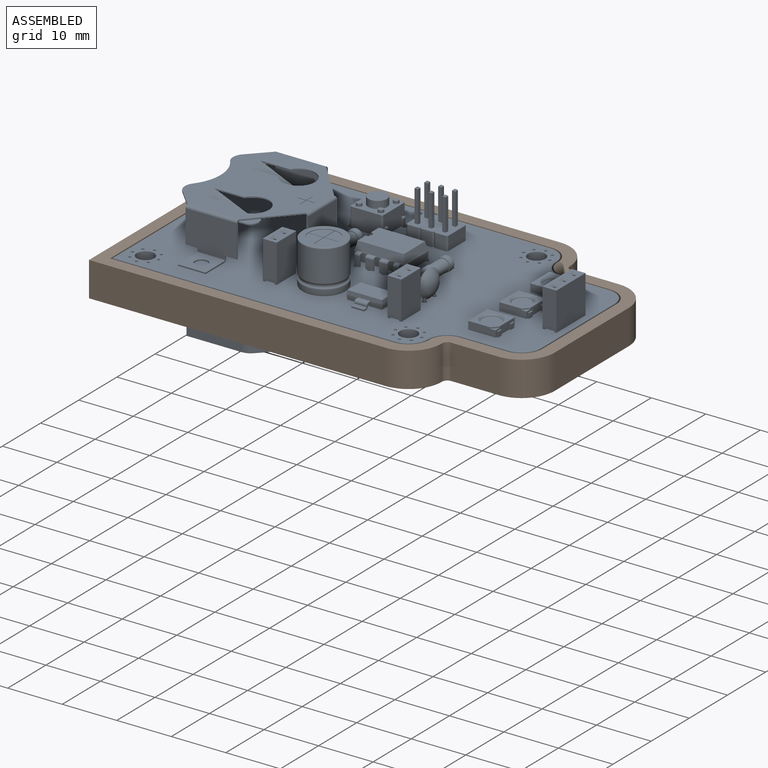
[diagram: assembled view]
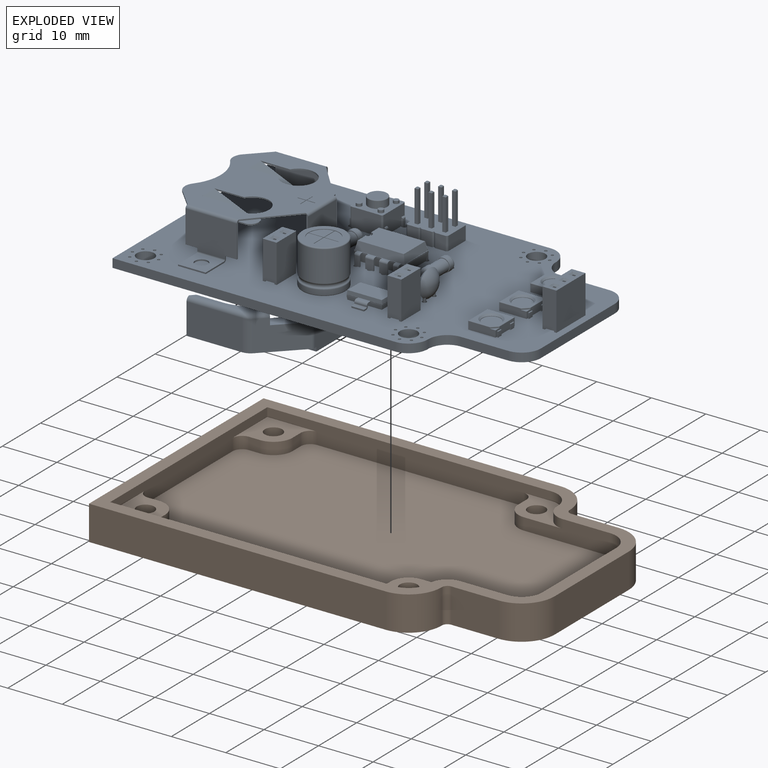
[diagram: exploded view]
GUIDED TOUR — FREECAD ASSEMBLY "blinky_WB_partdesign"

This assembly has 2 components, labeled P0..P1 below (a component is one placed body or linked part; the same part can appear more than once), held together by 0 modeled joints plus 1 derived contact edge. A joint is a constraint between two components; its type names the relative motion it leaves free:
  CONTACT — a derived adjacency edge — the two components touch in the source model (clearance under 2% of the assembly's diagonal); it is measured from the geometry, not a modeled constraint.
Axis/direction vectors are unit vectors and 'through' points are millimeter coordinates, both in the assembly's world frame.

MATES
  1. CONTACT "contact_0_1": P0 <-> P1, contact direction (0.000, 0.000, -1.000) through (-30.40, -16.76, -1.60) mm (derived from contact, not a modeled constraint)

ASSEMBLY ORDER
  1. P0 — the base component [order verified]
  2. P1 [order verified]
(P1 verified with a relaxed clearance tolerance: the source model stores slight part interference there.)
Order-tag legend:
  [order verified] — this step's position reverses a verified removal order: the component was checked to insert without passing through the ones already placed.

Of the 2 components, 1 carries a construction recipe — the FreeCAD feature program (sketches with constraints, then the solid features that consume them) that regenerates the part from scratch, quoted from this document or from the linked companion document it references; the rest are supplied as boundary geometry only. The tour below walks the components in assembly order: each is shown spotlighted twice — in the assembled view, then in the exploded view, where a leader line traces a displaced component back to its assembled socket (components that stay in place when exploded have no leader line; saturated green if recipe-attached, orange if geometry-only; every other component desaturated gray) — followed by its recipe or geometry summary and the mates that hold it.
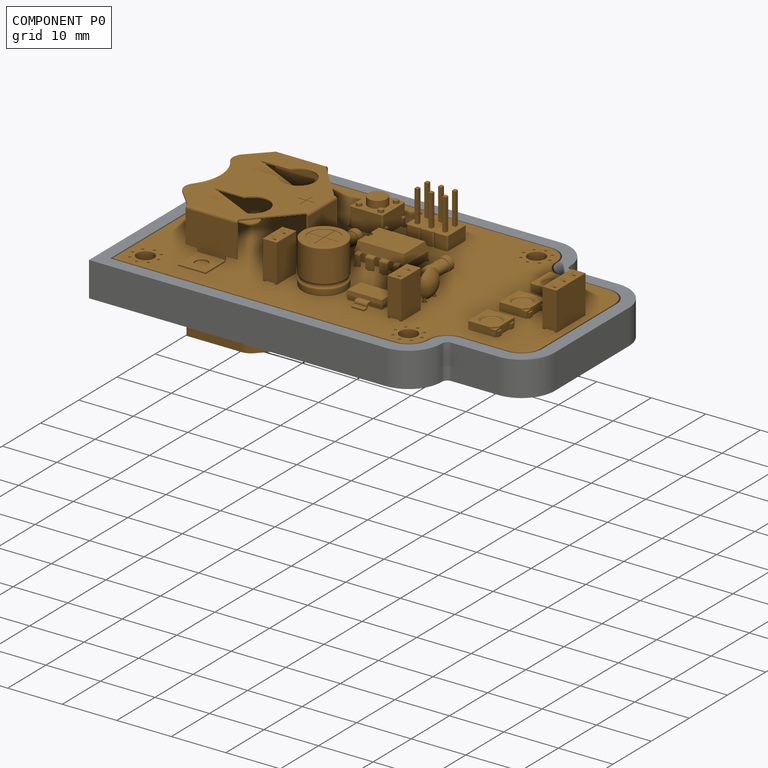
[diagram: component P0 — assembled]
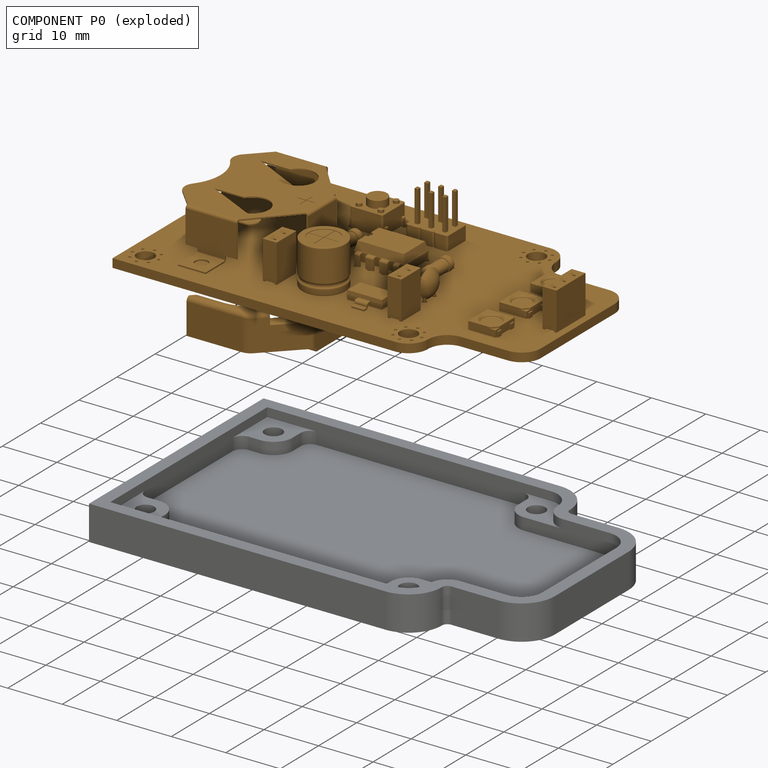
[diagram: component P0 — exploded]
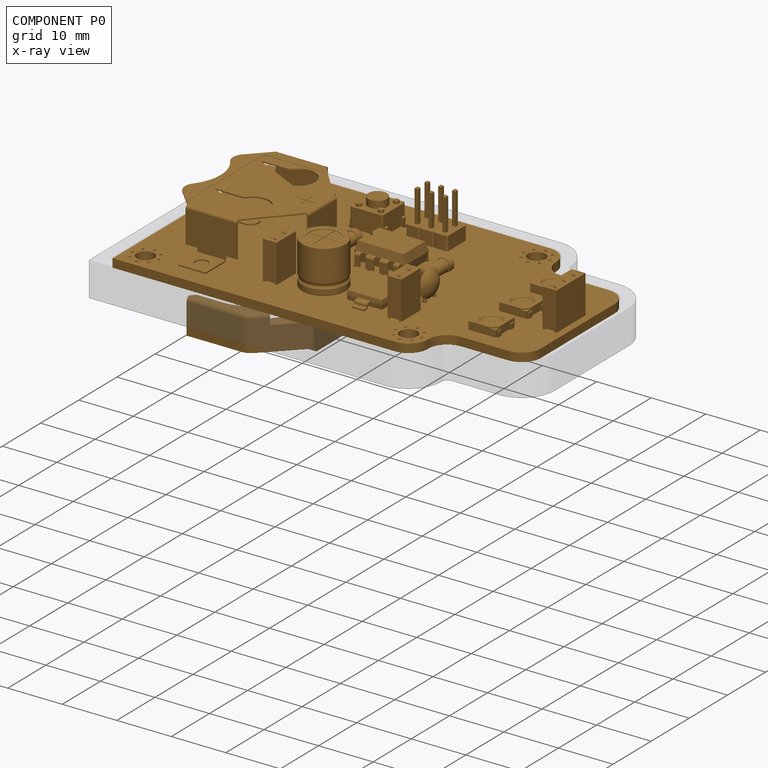
[diagram: component P0 — x-ray view]
COMPONENT P0 — geometry summary ("tiny_blinky"; no construction recipe available for this part):
  bounding box: 71.1 x 40.6 x 23.5 mm
  tessellated surface: 131,346 triangles
  volume: 6281 mm^3 (9% of its bounding box)
Held by: resting contact with P1 (derived edge).
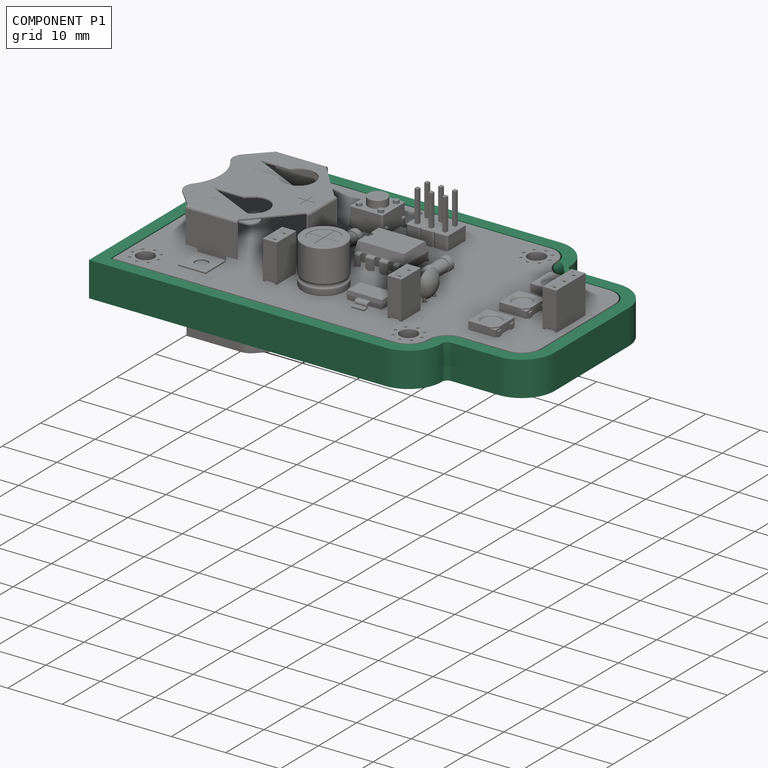
[diagram: component P1 — assembled]
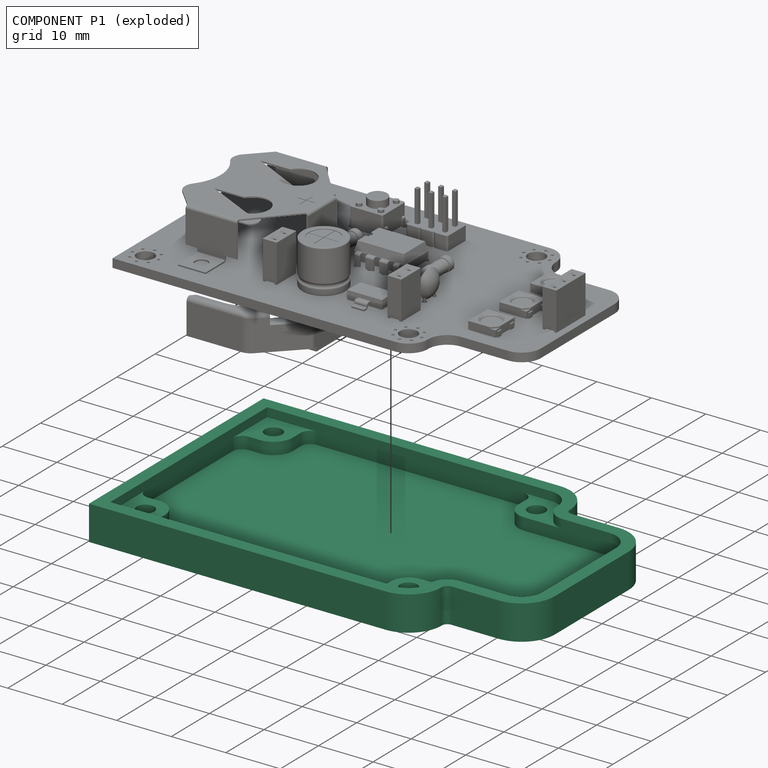
[diagram: component P1 — exploded]
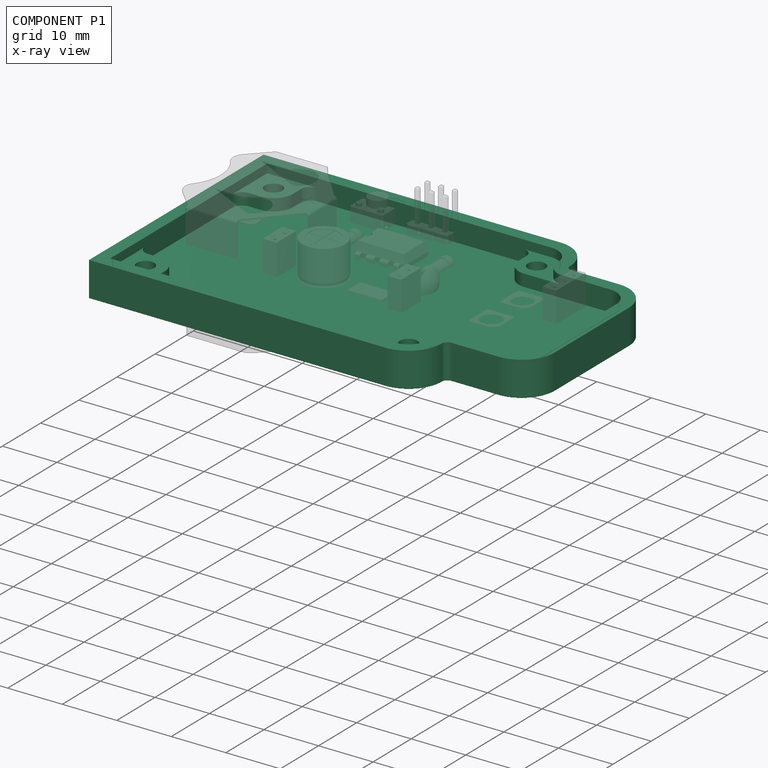
[diagram: component P1 — x-ray view]
COMPONENT P1 — recipe-attached ("Body", modeled in this document).
Held by: resting contact with P0 (derived edge).
Construction recipe (the document's own serialized feature program — sketch geometry with constraints, then the solid features built on it; lengths are millimeters unless a unit is written):

FEATURE [PartDesign::ShapeBinder] ShapeBinder
  Placement = pos=(-76.2,50.8,0) rot=(0,0,1;0rad)
  Support = -> [Pcb_d2eb]
  TraceSupport = false
FEATURE [Sketcher::SketchObject] Sketch
  ExternalGeometry = -> [ShapeBinder]
  MapMode = 5
  Support = -> [XY_Plane004]
  sketch-geometry (14):
    g0: LineSegment StartX=16.256 StartY=-22.86 StartZ=0 EndX=-38.1 EndY=-22.86 EndZ=0
    g1: LineSegment StartX=-38.1 StartY=-22.86 StartZ=0 EndX=-38.1 EndY=22.86 EndZ=0
    g2: LineSegment StartX=-38.1 StartY=22.86 StartZ=0 EndX=16.256 EndY=22.86 EndZ=0
    g3: ArcOfCircle CenterX=16.256 CenterY=16.764 CenterZ=0 NormalX=0 NormalY=0 NormalZ=1 AngleXU=0 Radius=6.096 StartAngle=-3.6e-15 EndAngle=1.5708
    g4: ArcOfCircle CenterX=23.368 CenterY=16.764 CenterZ=0 NormalX=0 NormalY=0 NormalZ=1 AngleXU=0 Radius=1.016 StartAngle=3.14159 EndAngle=4.71239
    g5: LineSegment StartX=23.368 StartY=15.748 StartZ=0 EndX=32.004 EndY=15.748 EndZ=0
    g6: ArcOfCircle CenterX=32.004 CenterY=9.652 CenterZ=0 NormalX=0 NormalY=0 NormalZ=1 AngleXU=0 Radius=6.096 StartAngle=1e-16 EndAngle=1.5708
    g7: LineSegment StartX=38.1 StartY=9.652 StartZ=0 EndX=38.1 EndY=-9.652 EndZ=0
    g8: ArcOfCircle CenterX=32.004 CenterY=-9.652 CenterZ=0 NormalX=0 NormalY=0 NormalZ=1 AngleXU=0 Radius=6.096 StartAngle=4.71239 EndAngle=6.28319
    g9: LineSegment StartX=32.004 StartY=-15.748 StartZ=0 EndX=23.368 EndY=-15.748 EndZ=0
    g10: ArcOfCircle CenterX=23.368 CenterY=-16.764 CenterZ=0 NormalX=0 NormalY=0 NormalZ=1 AngleXU=0 Radius=1.016 StartAngle=1.5708 EndAngle=3.14159
    g11: ArcOfCircle CenterX=16.256 CenterY=-16.764 CenterZ=0 NormalX=0 NormalY=0 NormalZ=1 AngleXU=0 Radius=6.096 StartAngle=4.71239 EndAngle=6.28319
    g12: LineSegment [constr] StartX=-35.56 StartY=20.32 StartZ=0 EndX=-38.1 EndY=20.32 EndZ=0
    g13: LineSegment [constr] StartX=-35.56 StartY=20.32 StartZ=0 EndX=-35.56 EndY=22.86 EndZ=0
  constraints (32):
    c: Horizontal(g0)
    c: Coincident(g0,g1)
    c: Vertical(g1)
    c: Coincident(g1,g2)
    c: Horizontal(g2)
    c: Tangent(g2,g3) = 1.5708
    c: Tangent(g3,g4) = 1.5708
    c: Tangent(g4,g5) = -1.5708
    c: Tangent(g5,g6) = 1.5708
    c: Vertical(g7)
    c: Tangent(g7,g8) = 1.5708
    c: Horizontal(g9)
    c: Tangent(g9,g10) = -1.5708
    c: Tangent(g10,g11) = 1.5708
    c: Tangent(g11,g0) = 1.5708
    c: Tangent(g8,g9) = 1.5708
    c: Tangent(g6,g7) = 1.5708
    c: Horizontal(g5)
    c: Coincident(g11,g-6)
    c: Coincident(g10,g-7)
    c: Coincident(g8,g-9)
    c: Coincident(g6,g-11)
    c: Coincident(g4,g-13)
    c: Coincident(g3,g-14)
    c: Coincident(g12,g-4)
    c: PointOnObject(g12,g1)
    c: Horizontal(g12)
    c: Coincident(g13,g12)
    c: PointOnObject(g13,g2)
    c: Vertical(g13)
    c: Equal(g13,g12)
    c: DistanceY(g13,g13) = 2.54
FEATURE [PartDesign::Pad] Pad
  Length = 6.35
  Length2 = 100.076
  Profile = -> Sketch
  Reversed = true
  Type = 0
FEATURE [Sketcher::SketchObject] Sketch001
  ExternalGeometry = -> [ShapeBinder]
  MapMode = 5
  Support = -> [Pad]
  sketch-geometry (14):
    g0: LineSegment StartX=16.256 StartY=-20.574 StartZ=0 EndX=-35.814 EndY=-20.574 EndZ=0
    g1: LineSegment StartX=-35.814 StartY=-20.574 StartZ=0 EndX=-35.814 EndY=20.574 EndZ=0
    g2: LineSegment StartX=-35.814 StartY=20.574 StartZ=0 EndX=16.256 EndY=20.574 EndZ=0
    g3: ArcOfCircle CenterX=16.256 CenterY=16.764 CenterZ=0 NormalX=0 NormalY=0 NormalZ=1 AngleXU=0 Radius=3.81 StartAngle=-2.7e-15 EndAngle=1.5708
    g4: ArcOfCircle CenterX=23.368 CenterY=16.764 CenterZ=0 NormalX=0 NormalY=0 NormalZ=1 AngleXU=0 Radius=3.302 StartAngle=3.14159 EndAngle=4.71239
    g5: LineSegment StartX=23.368 StartY=13.462 StartZ=0 EndX=32.004 EndY=13.462 EndZ=0
    g6: ArcOfCircle CenterX=32.004 CenterY=9.652 CenterZ=0 NormalX=0 NormalY=0 NormalZ=1 AngleXU=0 Radius=3.81 StartAngle=2e-16 EndAngle=1.5708
    g7: LineSegment StartX=35.814 StartY=9.652 StartZ=0 EndX=35.814 EndY=-9.652 EndZ=0
    g8: ArcOfCircle CenterX=32.004 CenterY=-9.652 CenterZ=0 NormalX=0 NormalY=0 NormalZ=1 AngleXU=0 Radius=3.81 StartAngle=4.71239 EndAngle=6.28319
    g9: LineSegment StartX=32.004 StartY=-13.462 StartZ=0 EndX=23.368 EndY=-13.462 EndZ=0
    g10: ArcOfCircle CenterX=23.368 CenterY=-16.764 CenterZ=0 NormalX=0 NormalY=0 NormalZ=1 AngleXU=0 Radius=3.302 StartAngle=1.5708 EndAngle=3.14159
    g11: ArcOfCircle CenterX=16.256 CenterY=-16.764 CenterZ=0 NormalX=0 NormalY=0 NormalZ=1 AngleXU=0 Radius=3.81 StartAngle=4.71239 EndAngle=6.28319
    g12: LineSegment [constr] StartX=-35.56 StartY=20.32 StartZ=0 EndX=-35.814 EndY=20.32 EndZ=0
    g13: LineSegment [constr] StartX=-35.56 StartY=20.32 StartZ=0 EndX=-35.56 EndY=20.574 EndZ=0
  constraints (32):
    c: Horizontal(g0)
    c: Vertical(g1)
    c: Horizontal(g2)
    c: Tangent(g2,g3) = 1.5708
    c: Tangent(g3,g4) = 1.5708
    c: Horizontal(g5)
    c: Tangent(g5,g6) = 1.5708
    c: Vertical(g7)
    c: Tangent(g7,g8) = 1.5708
    c: Tangent(g8,g9) = 1.5708
    c: Tangent(g6,g7) = 1.5708
    c: Tangent(g4,g5) = -1.5708
    c: Coincident(g8,g-9)
    c: Coincident(g6,g-11)
    c: Coincident(g4,g-13)
    c: Coincident(g3,g-14)
    c: Equal(g-8,g9)
    c: Coincident(g10,g-7)
    c: Coincident(g11,g-6)
    c: Tangent(g10,g9) = -1.5708
    c: Tangent(g11,g10) = 1.5708
    c: Tangent(g0,g11) = 1.5708
    c: Coincident(g1,g0)
    c: Coincident(g2,g1)
    c: Coincident(g12,g-4)
    c: Coincident(g13,g12)
    c: PointOnObject(g13,g2)
    c: Vertical(g13)
    c: PointOnObject(g12,g1)
    c: Horizontal(g12)
    c: Equal(g12,g13)
    c: DistanceY(g13,g13) = 0.254
FEATURE [PartDesign::Pocket] Pocket
  BaseFeature = -> Pad
  Length = 3.81
  Length2 = 100.076
  Profile = -> Sketch001
  Type = 0
FEATURE [Sketcher::SketchObject] Sketch002
  ExternalGeometry = -> [ShapeBinder,Pocket]
  MapMode = 5
  Placement = pos=(0,0,-3.81) rot=(0,0,1;0rad)
  Support = -> [Pocket]
  sketch-geometry (14):
    g0: LineSegment StartX=-26.67 StartY=20.574 StartZ=0 EndX=-35.814 EndY=20.574 EndZ=0
    g1: LineSegment StartX=-35.814 StartY=20.574 StartZ=0 EndX=-35.814 EndY=11.43 EndZ=0
    g2: ArcOfCircle CenterX=-34.036 CenterY=11.43 CenterZ=0 NormalX=0 NormalY=0 NormalZ=1 AngleXU=0 Radius=1.778 StartAngle=1.5708 EndAngle=3.14159
    g3: LineSegment StartX=-34.036 StartY=13.208 StartZ=0 EndX=-32.004 EndY=13.208 EndZ=0
    g4: ArcOfCircle CenterX=-32.004 CenterY=16.764 CenterZ=0 NormalX=0 NormalY=0 NormalZ=1 AngleXU=0 Radius=3.556 StartAngle=4.71239 EndAngle=6.28319
    g5: LineSegment StartX=-28.448 StartY=16.764 StartZ=0 EndX=-28.448 EndY=18.796 EndZ=0
    g6: ArcOfCircle CenterX=-26.67 CenterY=18.796 CenterZ=0 NormalX=0 NormalY=0 NormalZ=1 AngleXU=0 Radius=1.778 StartAngle=1.5708 EndAngle=3.14159
    g7: LineSegment StartX=23.368 StartY=13.462 StartZ=0 EndX=16.256 EndY=13.462 EndZ=0
    g8: ArcOfCircle CenterX=16.256 CenterY=16.764 CenterZ=0 NormalX=0 NormalY=0 NormalZ=1 AngleXU=0 Radius=3.302 StartAngle=3.14159 EndAngle=4.71239
    g9: LineSegment StartX=12.954 StartY=16.764 StartZ=0 EndX=12.954 EndY=18.796 EndZ=0
    g10: ArcOfCircle CenterX=11.176 CenterY=18.796 CenterZ=0 NormalX=0 NormalY=0 NormalZ=1 AngleXU=0 Radius=1.778 StartAngle=6e-16 EndAngle=1.5708
    g11: LineSegment StartX=11.176 StartY=20.574 StartZ=0 EndX=16.256 EndY=20.574 EndZ=0
    g12: ArcOfCircle CenterX=16.256 CenterY=16.764 CenterZ=0 NormalX=0 NormalY=0 NormalZ=1 AngleXU=0 Radius=3.81 StartAngle=1.8e-15 EndAngle=1.5708
    g13: ArcOfCircle CenterX=23.368 CenterY=16.764 CenterZ=0 NormalX=0 NormalY=0 NormalZ=1 AngleXU=0 Radius=3.302 StartAngle=3.14159 EndAngle=4.71239
  constraints (34):
    c: Horizontal(g0)
    c: Coincident(g0,g1)
    c: Vertical(g1)
    c: Horizontal(g3)
    c: Tangent(g3,g4) = -1.5708
    c: Coincident(g4,g5)
    c: Vertical(g5)
    c: Tangent(g5,g6) = 1.5708
    c: Equal(g6,g2)
    c: Coincident(g4,g-6)
    c: Tangent(g2,g3) = 1.5708
    c: Tangent(g2,g1) = -1.5708
    c: Tangent(g0,g6) = -1.5708
    c: Equal(g3,g5)
    c: PointOnObject(g1,g-7)
    c: PointOnObject(g0,g-8)
    c: Radius(g4) = 3.556
    c: Radius(g6) = 1.778
    c: Coincident(g-9,g7)
    c: Horizontal(g7)
    c: Tangent(g7,g8) = 1.5708
    c: Vertical(g9)
    c: Tangent(g9,g10) = -1.5708
    c: PointOnObject(g10,g-8)
    c: Tangent(g-8,g10)
    c: Tangent(g8,g9) = 1.5708
    c: Coincident(g8,g-5)
    c: Equal(g6,g10)
    c: Coincident(g10,g11)
    c: Tangent(g11,g12) = 1.5708
    c: Coincident(g12,g-10)
    c: Tangent(g12,g13) = 1.5708
    c: Coincident(g13,g7)
    c: Coincident(g8,g12)
FEATURE [PartDesign::Pad] Pad001
  BaseFeature = -> Pocket
  Length = 2.2098
  Length2 = 100.076
  Profile = -> Sketch002
  Type = 0
FEATURE [PartDesign::Mirrored] Mirrored
  BaseFeature = -> Pad001
  MirrorPlane = -> Sketch002 [H_Axis]
  Originals = -> [Pad001]
FEATURE [Sketcher::SketchObject] Sketch003
  ExternalGeometry = -> [ShapeBinder]
  MapMode = 5
  Placement = pos=(0,0,-1.6002) rot=(0,0,1;0rad)
  Support = -> [Mirrored]
  sketch-geometry (4):
    g0: Circle CenterX=-32.004 CenterY=-16.764 CenterZ=0 NormalX=0 NormalY=0 NormalZ=1 AngleXU=0 Radius=1.6
    g1: Circle CenterX=16.256 CenterY=-16.764 CenterZ=0 NormalX=0 NormalY=0 NormalZ=1 AngleXU=0 Radius=1.6
    g2: Circle CenterX=16.256 CenterY=16.764 CenterZ=0 NormalX=0 NormalY=0 NormalZ=1 AngleXU=0 Radius=1.6
    g3: Circle CenterX=-32.004 CenterY=16.764 CenterZ=0 NormalX=0 NormalY=0 NormalZ=1 AngleXU=0 Radius=1.6
  constraints (8):
    c: Coincident(g0,g-5)
    c: Coincident(g1,g-6)
    c: Coincident(g2,g-4)
    c: Coincident(g3,g-3)
    c: Equal(g3,g2)
    c: Equal(g2,g1)
    c: Equal(g1,g0)
    c: Equal(g-3,g3)
FEATURE [PartDesign::Pocket] Pocket001
  BaseFeature = -> Mirrored
  Length = 5.08
  Length2 = 100.076
  Profile = -> Sketch003
  Type = 1
FEATURE [PartDesign::Body] Body
  Group = -> [Sketch,ShapeBinder,Pad,Sketch001,Pocket,Sketch002,Pad001,Mirrored,Sketch003,Pocket001]
  Origin = -> Origin004
  Tip = -> Pocket001
PROVENANCE & LICENSES
Assembly and component geometry: a FreeCAD (.FCStd) document from a public repository crawl; components, placements and joints were extracted with FreeCAD and each solid tessellated.
Construction recipes: the document's own serialized feature recipes (and, for linked parts, the recipes of companion documents from the same project).
License: as declared in the source repository (recorded in the dataset sidecar).
Joints: native FreeCAD joints and A2plus constraints are mapped to standard mate types; edges marked 'derived from contact' connect touching components and are measured from the geometry, not modeled.
Verification: 1 of this assembly's 2 components carries a construction recipe (1 from this document itself); the rest are geometry-only. Every component's tessellation passed the extraction mesh gates (mesh-volume checksum against the B-rep where available, bounding-box inflation <= 2%).
Renders: orthographic iso camera (az 35 / el 25); the floor grid conveys scale (grid pitch printed in each image; no ruler). In the exploded view each component is displaced by its stored offset vector: the offsets alone carry the explosion direction (mate normal/axis signs are not orientation cues and do not encode it), and separation distances are assigned per mate-chain, not proportionally to assembly-order depth.
